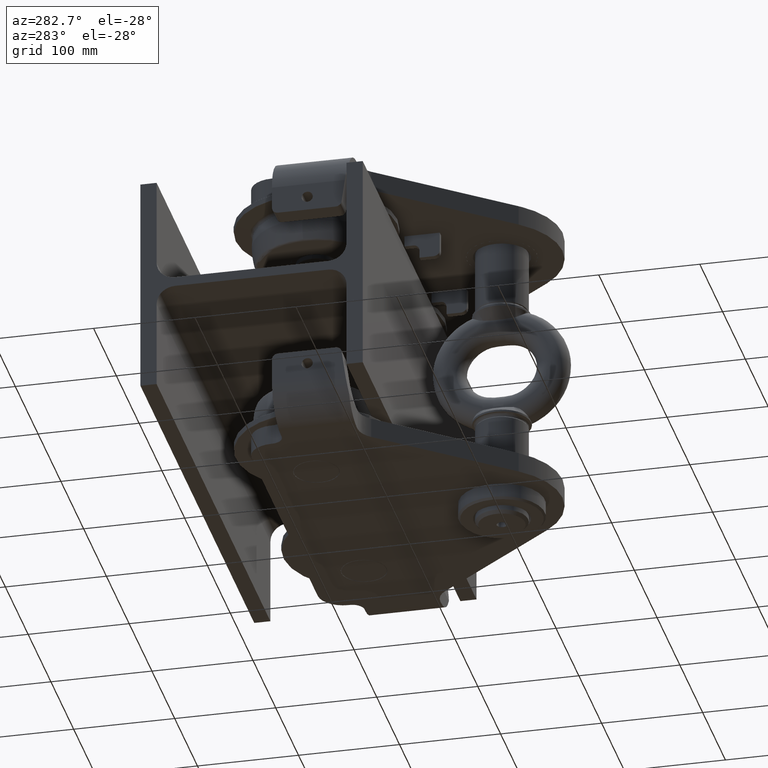
[diagram: clean part render]
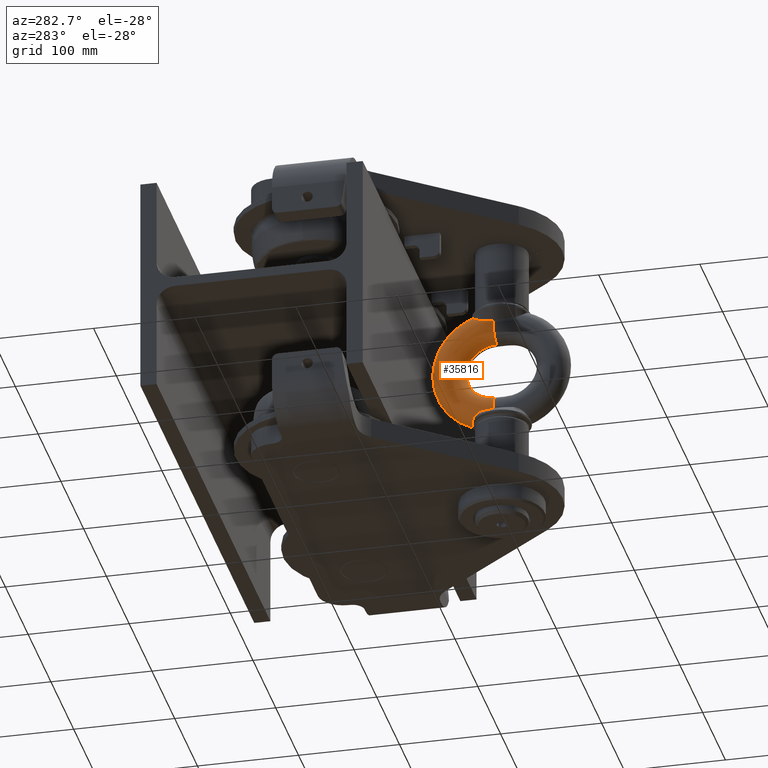
[diagram: same view with one face highlighted and labeled with its STEP entity id]
A machine part, auxiliary view. The second image highlights one B-rep face of the part: STEP entity #35816.
In plain terms, the highlighted toroidal blend (fillet) surface has major radius 46.5 mm and minor (blend) radius 16.5 mm.
Its self-contained STEP definition (entity closure, byte-faithful):
#60 = ORIENTED_EDGE ( 'NONE', *, *, #31855, .T. ) ;
#515 = EDGE_CURVE ( 'NONE', #19495, #3713, #19311, .T. ) ;
#541 = DIRECTION ( 'NONE',  ( -9.776541854337925000E-031, 1.000000000000000000, -1.414387360566590500E-014 ) ) ;
#743 = VERTEX_POINT ( 'NONE', #949 ) ;
#816 = CARTESIAN_POINT ( 'NONE',  ( -14.41843490699961400, -169.2002873099179400, 51.71288681910759500 ) ) ;
#949 = CARTESIAN_POINT ( 'NONE',  ( -3.446674414604755900E-015, -162.4999999999998000, 58.24946351684270200 ) ) ;
#1367 = CARTESIAN_POINT ( 'NONE',  ( -7.531583063169865300, -163.4798379345662900, 56.70910042947492300 ) ) ;
#1508 = CARTESIAN_POINT ( 'NONE',  ( -5.468188847259967800E-015, -186.5000000000000300, -2.774178518929992600E-016 ) ) ;
#1783 = VERTEX_POINT ( 'NONE', #26517 ) ;
#1902 = CARTESIAN_POINT ( 'NONE',  ( -15.76447316238294100, -173.3434420415851500, -49.66572867952409400 ) ) ;
#2081 = AXIS2_PLACEMENT_3D ( 'NONE', #9748, #6836, #3920 ) ;
#2160 = CARTESIAN_POINT ( 'NONE',  ( -13.29989869337451900, -167.4643535190509200, -52.95500724111472800 ) ) ;
#2316 = EDGE_CURVE ( 'NONE', #1783, #7033, #33848, .T. ) ;
#2329 = CARTESIAN_POINT ( 'NONE',  ( -16.14970968157152200, -176.4269376305332500, 48.85419018527897400 ) ) ;
#2666 = ORIENTED_EDGE ( 'NONE', *, *, #33411, .F. ) ;
#2725 = CARTESIAN_POINT ( 'NONE',  ( -4.262020387056222500E-015, -186.5000000000000300, 46.50000000000000000 ) ) ;
#2727 = CARTESIAN_POINT ( 'NONE',  ( -15.60961632101484400, -172.6033117119138200, 49.95687587011614300 ) ) ;
#2797 = DIRECTION ( 'NONE',  ( -1.000000000000000000, 0.0000000000000000000, 6.939431567305113600E-017 ) ) ;
#2870 = AXIS2_PLACEMENT_3D ( 'NONE', #20437, #2797, #12062 ) ;
#3630 = CARTESIAN_POINT ( 'NONE',  ( -16.42524475720239600, -184.8131510489849300, -48.06996765217579100 ) ) ;
#3673 = VERTEX_POINT ( 'NONE', #18281 ) ;
#3713 = VERTEX_POINT ( 'NONE', #20030 ) ;
#3920 = DIRECTION ( 'NONE',  ( -1.000000000000000000, 0.0000000000000000000, 0.0000000000000000000 ) ) ;
#3988 = CARTESIAN_POINT ( 'NONE',  ( -1.162611234089079300, -162.4999999999997200, -58.24946351684270200 ) ) ;
#4043 = AXIS2_PLACEMENT_3D ( 'NONE', #24868, #541, #6863 ) ;
#4217 = EDGE_CURVE ( 'NONE', #743, #26071, #31185, .T. ) ;
#4461 = CARTESIAN_POINT ( 'NONE',  ( -4.262020387056222500E-015, -186.5000000000000300, 46.50000000000000000 ) ) ;
#4512 = CARTESIAN_POINT ( 'NONE',  ( -11.04097899882418300, -165.3450377320452300, 54.82810784448297200 ) ) ;
#5304 = CARTESIAN_POINT ( 'NONE',  ( -15.52368704440445200, -172.2432221762338700, -50.11044335773218000 ) ) ;
#5482 = CARTESIAN_POINT ( 'NONE',  ( -16.14970968157152200, -176.4269376305332500, 48.85419018527897400 ) ) ;
#5814 = VERTEX_POINT ( 'NONE', #9284 ) ;
#6139 = CIRCLE ( 'NONE', #2870, 63.00000000000000000 ) ;
#6735 = ORIENTED_EDGE ( 'NONE', *, *, #13184, .T. ) ;
#6797 = CIRCLE ( 'NONE', #24768, 16.50000000000000400 ) ;
#6836 = DIRECTION ( 'NONE',  ( -9.776541854337925000E-031, 1.000000000000000000, -1.414387360566590500E-014 ) ) ;
#6863 = DIRECTION ( 'NONE',  ( -1.000000000000000000, 0.0000000000000000000, 0.0000000000000000000 ) ) ;
#7033 = VERTEX_POINT ( 'NONE', #36393 ) ;
#7040 = CARTESIAN_POINT ( 'NONE',  ( -4.599352381566343500, -162.8614865996226500, -57.70260742488734000 ) ) ;
#7282 = EDGE_CURVE ( 'NONE', #7033, #5814, #32864, .T. ) ;
#7293 = ORIENTED_EDGE ( 'NONE', *, *, #11344, .T. ) ;
#7407 = CARTESIAN_POINT ( 'NONE',  ( -9.542474760971408900, -164.3633559654267300, 55.74942739138322200 ) ) ;
#7732 = AXIS2_PLACEMENT_3D ( 'NONE', #15212, #11688, #20953 ) ;
#7835 = CARTESIAN_POINT ( 'NONE',  ( -16.14970968157152200, -176.4269376305332500, 48.85419018527897400 ) ) ;
#7972 = VERTEX_POINT ( 'NONE', #10485 ) ;
#8089 = CARTESIAN_POINT ( 'NONE',  ( -7.530738171591466700, -163.4796399932718300, -56.70943172050336800 ) ) ;
#8102 = CARTESIAN_POINT ( 'NONE',  ( -16.33325860116091700, -179.7695224717336900, 48.42271561141750900 ) ) ;
#8136 = CARTESIAN_POINT ( 'NONE',  ( -14.99815633690359500, -170.4862957488740300, 50.95146419734248900 ) ) ;
#8344 = CARTESIAN_POINT ( 'NONE',  ( -15.83172462128880300, -173.7159052453799900, -49.53129400317497000 ) ) ;
#8471 = CARTESIAN_POINT ( 'NONE',  ( -12.86108947759542600, -166.9328628973955200, 53.39142813885624200 ) ) ;
#8494 = CARTESIAN_POINT ( 'NONE',  ( -16.27217791761417200, -178.0942255209702400, 48.60082342732088300 ) ) ;
#9130 = B_SPLINE_CURVE_WITH_KNOTS ( 'NONE', 3,
 ( #5482, #20746, #32511, #23238, #14616, #2727, #26117, #35503, #8136, #38602, #816, #19265, #31514, #28595, #8471, #19307, #21904, #12479, #4512, #19643, #7407, #10344, #1367, #37285 ),
 .UNSPECIFIED., .F., .F.,
 ( 4, 2, 2, 2, 2, 2, 2, 2, 2, 2, 2, 4 ),
 ( 0.0000000000000000000, 0.002409449002536784700, 0.003614173503805172100, 0.004818898005073559000, 0.007228347007610332100, 0.008433071508878719000, 0.009637796010147104200, 0.01204724501268387800, 0.01325196951395226500, 0.01445669401522065200, 0.01686614301775737900, 0.01927559202029410100 ),
 .UNSPECIFIED. ) ;
#9167 = CARTESIAN_POINT ( 'NONE',  ( -16.33325860116092100, -179.7695224717339800, -48.42271561141747300 ) ) ;
#9250 = VERTEX_POINT ( 'NONE', #27306 ) ;
#9284 = CARTESIAN_POINT ( 'NONE',  ( -16.50000000000001100, -186.5000000000006800, -46.50000000000000000 ) ) ;
#9569 = CARTESIAN_POINT ( 'NONE',  ( -16.43063562197321700, -186.5000000000006800, -48.01136132607177100 ) ) ;
#9606 = FACE_OUTER_BOUND ( 'NONE', #17677, .T. ) ;
#9748 = CARTESIAN_POINT ( 'NONE',  ( -1.071569174464997900E-014, -186.5000000000006800, -46.50000000000000000 ) ) ;
#10344 = CARTESIAN_POINT ( 'NONE',  ( -8.226983262881347500, -163.7372643142427900, 56.40426757459554400 ) ) ;
#10485 = CARTESIAN_POINT ( 'NONE',  ( -6.789701822038450600, -163.3060299147529400, -57.00000000000000000 ) ) ;
#10586 = B_SPLINE_CURVE_WITH_KNOTS ( 'NONE', 3,
 ( #20396, #30775, #13806, #8102, #8494, #7835 ),
 .UNSPECIFIED., .F., .F.,
 ( 4, 2, 4 ),
 ( 0.0000000000000000000, 0.005056082113877077800, 0.01011216422775415600 ),
 .UNSPECIFIED. ) ;
#10603 = EDGE_CURVE ( 'NONE', #9250, #3673, #6797, .T. ) ;
#10724 = EDGE_CURVE ( 'NONE', #5814, #3713, #26486, .T. ) ;
#11027 = CARTESIAN_POINT ( 'NONE',  ( -6.789701822038450600, -163.3060299147529400, -57.00000000000000000 ) ) ;
#11163 = CARTESIAN_POINT ( 'NONE',  ( -11.88198488525195500, -165.9962263442315600, -54.22649970756167200 ) ) ;
#11344 = EDGE_CURVE ( 'NONE', #743, #32436, #6139, .T. ) ;
#11472 = ORIENTED_EDGE ( 'NONE', *, *, #32508, .T. ) ;
#11544 = CARTESIAN_POINT ( 'NONE',  ( -8.228052558565025300, -163.7374405120037900, -56.40392126491875000 ) ) ;
#11688 = DIRECTION ( 'NONE',  ( -1.000000000000000000, 0.0000000000000000000, 6.939431567305113600E-017 ) ) ;
#12062 = DIRECTION ( 'NONE',  ( 6.939431567305114900E-017, 0.0000000000000000000, 1.000000000000000000 ) ) ;
#12479 = CARTESIAN_POINT ( 'NONE',  ( -11.32339452381241600, -165.5587719001377100, 54.63134564718190900 ) ) ;
#13184 = EDGE_CURVE ( 'NONE', #32436, #7972, #32163, .T. ) ;
#13806 = CARTESIAN_POINT ( 'NONE',  ( -16.41022114154716100, -183.1289571422516600, 48.15709499626955600 ) ) ;
#14433 = CARTESIAN_POINT ( 'NONE',  ( -9.541050357054324100, -164.3817669063440400, -55.73941017199313600 ) ) ;
#14570 = CARTESIAN_POINT ( 'NONE',  ( -10.16649636255132400, -164.7498581920369800, -55.38407336389996500 ) ) ;
#14616 = CARTESIAN_POINT ( 'NONE',  ( -15.76393853991870100, -173.3405499587231900, 49.66678633498690200 ) ) ;
#15212 = CARTESIAN_POINT ( 'NONE',  ( -7.488856065853100900E-015, -186.5000000000000300, -2.774178518929991200E-016 ) ) ;
#15245 = CARTESIAN_POINT ( 'NONE',  ( -16.41022114154715800, -183.1289571422520100, -48.15709499626950000 ) ) ;
#16574 = CARTESIAN_POINT ( 'NONE',  ( -2.315721349617374100, -162.5696722219009000, 58.14676997551423900 ) ) ;
#16800 = CARTESIAN_POINT ( 'NONE',  ( -6.789701822038494200, -163.3060299147527100, 57.00000000000000000 ) ) ;
#16980 = CARTESIAN_POINT ( 'NONE',  ( -6.255083864232555700, -163.1772826503112400, 57.20820648636673400 ) ) ;
#17470 = CARTESIAN_POINT ( 'NONE',  ( -16.14970968157152600, -176.4269376305332700, -48.85419018527897400 ) ) ;
#17596 = CARTESIAN_POINT ( 'NONE',  ( -15.03840813540615400, -170.4573933811843500, -50.92307947960900800 ) ) ;
#17677 = EDGE_LOOP ( 'NONE', ( #19626, #7293, #6735, #11472, #18290, #25962, #25313, #35306, #2666, #34188, #60, #29384 ) ) ;
#18281 = CARTESIAN_POINT ( 'NONE',  ( -16.50000000000000400, -186.5000000000000300, 46.50000000000000000 ) ) ;
#18290 = ORIENTED_EDGE ( 'NONE', *, *, #2316, .T. ) ;
#18403 = AXIS2_PLACEMENT_3D ( 'NONE', #4461, #36312, #34359 ) ;
#19265 = CARTESIAN_POINT ( 'NONE',  ( -14.08090010373033600, -168.5892379345300800, 52.11621288737865100 ) ) ;
#19307 = CARTESIAN_POINT ( 'NONE',  ( -12.12155273087583200, -166.2259204597050400, 54.02184071569303800 ) ) ;
#19311 = CIRCLE ( 'NONE', #37752, 30.00000000000000000 ) ;
#19495 = VERTEX_POINT ( 'NONE', #29866 ) ;
#19626 = ORIENTED_EDGE ( 'NONE', *, *, #4217, .F. ) ;
#19643 = CARTESIAN_POINT ( 'NONE',  ( -10.16253130831400900, -164.7316451969872700, 55.39900076943216300 ) ) ;
#19703 = CARTESIAN_POINT ( 'NONE',  ( -4.030948684562137200, -162.7757409080449000, 57.83382278780621300 ) ) ;
#20030 = CARTESIAN_POINT ( 'NONE',  ( -5.468188847259969400E-015, -186.5000000000004800, -30.00000000000000000 ) ) ;
#20304 = CARTESIAN_POINT ( 'NONE',  ( -12.62039186310531300, -166.7031227623467100, -53.59638425016864700 ) ) ;
#20396 = CARTESIAN_POINT ( 'NONE',  ( -16.43063562197320600, -186.5000000000000300, 48.01136132607177800 ) ) ;
#20437 = CARTESIAN_POINT ( 'NONE',  ( -7.488856065853100900E-015, -186.5000000000000300, -2.774178518929991200E-016 ) ) ;
#20746 = CARTESIAN_POINT ( 'NONE',  ( -16.09073594290872900, -175.6258230020139600, 48.97655935730085700 ) ) ;
#20848 = TOROIDAL_SURFACE ( 'NONE', #7732, 46.50000000000000000, 16.50000000000000000 ) ;
#20953 = DIRECTION ( 'NONE',  ( -6.939431567305113600E-017, 0.0000000000000000000, -1.000000000000000000 ) ) ;
#20960 = DIRECTION ( 'NONE',  ( -1.000000000000000000, 0.0000000000000000000, 0.0000000000000000000 ) ) ;
#21904 = CARTESIAN_POINT ( 'NONE',  ( -11.86317710511134000, -165.9990989956879400, 54.22865603293592300 ) ) ;
#22263 = CARTESIAN_POINT ( 'NONE',  ( -6.789701822038450600, -163.3060299147529400, -57.00000000000000000 ) ) ;
#22294 = CARTESIAN_POINT ( 'NONE',  ( -1.153103773275323500E-014, -162.4999999999998000, -58.24946351684270200 ) ) ;
#22964 = CARTESIAN_POINT ( 'NONE',  ( -6.789701822038494200, -163.3060299147527100, 57.00000000000000000 ) ) ;
#23188 = CARTESIAN_POINT ( 'NONE',  ( -13.51089859848679900, -167.7361022266951500, -52.73977358315157500 ) ) ;
#23238 = CARTESIAN_POINT ( 'NONE',  ( -15.83134933537284900, -173.7136710239932100, 49.53205681885142300 ) ) ;
#23980 = CARTESIAN_POINT ( 'NONE',  ( -16.27217791761418300, -178.0942255209703000, -48.60082342732086100 ) ) ;
#24768 = AXIS2_PLACEMENT_3D ( 'NONE', #2725, #26838, #20960 ) ;
#24868 = CARTESIAN_POINT ( 'NONE',  ( -1.071569174464997900E-014, -186.5000000000006800, -46.50000000000000000 ) ) ;
#25016 = CARTESIAN_POINT ( 'NONE',  ( -4.030948684562138100, -162.7757409080449000, -57.83382278780621300 ) ) ;
#25150 = DIRECTION ( 'NONE',  ( 6.939431567305112400E-017, 0.0000000000000000000, 1.000000000000000000 ) ) ;
#25265 = CARTESIAN_POINT ( 'NONE',  ( -2.315721349617378100, -162.5696722219009000, -58.14676997551423900 ) ) ;
#25313 = ORIENTED_EDGE ( 'NONE', *, *, #10724, .T. ) ;
#25718 = CARTESIAN_POINT ( 'NONE',  ( -5.710080908971724200, -163.0621121015218500, 57.39001116515273500 ) ) ;
#25743 = CIRCLE ( 'NONE', #18403, 16.50000000000000400 ) ;
#25768 = B_SPLINE_CURVE_WITH_KNOTS ( 'NONE', 3,
 ( #11027, #8089, #11544, #32447, #14433, #14570, #29066, #26320, #11163, #20304, #32068, #2160, #23188, #26198, #17596, #5304, #38474, #1902, #8344, #29308, #35323, #17470 ),
 .UNSPECIFIED., .F., .F.,
 ( 4, 2, 2, 2, 2, 2, 2, 2, 2, 2, 4 ),
 ( 4.127849144711674500E-016, 0.002407351298758848200, 0.003611026948138083900, 0.004814702597517320000, 0.007222053896275781900, 0.008425729545655036600, 0.009629405195034289700, 0.01444410779255121700, 0.01564778344193044900, 0.01685145909130967800, 0.01925881039006813200 ),
 .UNSPECIFIED. ) ;
#25962 = ORIENTED_EDGE ( 'NONE', *, *, #7282, .T. ) ;
#26071 = VERTEX_POINT ( 'NONE', #16800 ) ;
#26117 = CARTESIAN_POINT ( 'NONE',  ( -15.52239812837037600, -172.2381068762570900, 50.11268272700814200 ) ) ;
#26198 = CARTESIAN_POINT ( 'NONE',  ( -14.49674230936695300, -169.1583207088277700, -51.68017325012591100 ) ) ;
#26320 = CARTESIAN_POINT ( 'NONE',  ( -11.34520208129463700, -165.5585483348292300, -54.62953950804698200 ) ) ;
#26486 = CIRCLE ( 'NONE', #2081, 16.50000000000000400 ) ;
#26517 = CARTESIAN_POINT ( 'NONE',  ( -16.14970968157152600, -176.4269376305332700, -48.85419018527897400 ) ) ;
#26838 = DIRECTION ( 'NONE',  ( 0.0000000000000000000, -1.000000000000000000, 5.548357037863925900E-017 ) ) ;
#27306 = CARTESIAN_POINT ( 'NONE',  ( -16.43063562197320600, -186.5000000000000300, 48.01136132607177800 ) ) ;
#27748 = CARTESIAN_POINT ( 'NONE',  ( -6.255083864232553900, -163.1772826503112700, -57.20820648636673400 ) ) ;
#28595 = CARTESIAN_POINT ( 'NONE',  ( -13.30570346881183700, -167.4419289165998400, 52.95966035064358800 ) ) ;
#28955 = CARTESIAN_POINT ( 'NONE',  ( -4.599352381566340900, -162.8614865996226500, 57.70260742488734000 ) ) ;
#29066 = CARTESIAN_POINT ( 'NONE',  ( -10.47097514470773100, -164.9465008450962700, -55.19895987007903700 ) ) ;
#29237 = EDGE_CURVE ( 'NONE', #37790, #26071, #9130, .T. ) ;
#29308 = CARTESIAN_POINT ( 'NONE',  ( -16.00779564519314800, -174.8489914343376200, -49.16660984428277500 ) ) ;
#29384 = ORIENTED_EDGE ( 'NONE', *, *, #29237, .T. ) ;
#29866 = CARTESIAN_POINT ( 'NONE',  ( -5.468188847259967800E-015, -186.5000000000000300, 30.00000000000000000 ) ) ;
#30775 = CARTESIAN_POINT ( 'NONE',  ( -16.42524475720238500, -184.8131510489843900, 48.06996765217581900 ) ) ;
#31185 = B_SPLINE_CURVE_WITH_KNOTS ( 'NONE', 3,
 ( #31846, #34846, #16574, #19703, #28955, #25718, #16980, #22964 ),
 .UNSPECIFIED., .F., .F.,
 ( 4, 2, 2, 4 ),
 ( 0.006967397322768796200, 0.01044571445054512200, 0.01218487301443328500, 0.01392403157832144800 ),
 .UNSPECIFIED. ) ;
#31514 = CARTESIAN_POINT ( 'NONE',  ( -13.89661665512418100, -168.2916594602536400, 52.32551736131588200 ) ) ;
#31846 = CARTESIAN_POINT ( 'NONE',  ( -3.446674414604755900E-015, -162.4999999999998000, 58.24946351684270200 ) ) ;
#31855 = EDGE_CURVE ( 'NONE', #9250, #37790, #10586, .T. ) ;
#32068 = CARTESIAN_POINT ( 'NONE',  ( -12.85498062700794200, -166.9483744100648700, -53.38296045857460100 ) ) ;
#32163 = B_SPLINE_CURVE_WITH_KNOTS ( 'NONE', 3,
 ( #33766, #3988, #25265, #25016, #7040, #33884, #27748, #22263 ),
 .UNSPECIFIED., .F., .F.,
 ( 4, 2, 2, 4 ),
 ( 0.006967397322768791000, 0.01044571445054511000, 0.01218487301443326900, 0.01392403157832142900 ),
 .UNSPECIFIED. ) ;
#32436 = VERTEX_POINT ( 'NONE', #22294 ) ;
#32447 = CARTESIAN_POINT ( 'NONE',  ( -9.219653869748247700, -164.2098814411540100, -55.91003089512702200 ) ) ;
#32508 = EDGE_CURVE ( 'NONE', #7972, #1783, #25768, .T. ) ;
#32511 = CARTESIAN_POINT ( 'NONE',  ( -16.00775697945096700, -174.8483820348196200, 49.16671881102188700 ) ) ;
#32629 = CARTESIAN_POINT ( 'NONE',  ( -16.14970968157152600, -176.4269376305332700, -48.85419018527897400 ) ) ;
#32864 = CIRCLE ( 'NONE', #4043, 16.50000000000000400 ) ;
#33411 = EDGE_CURVE ( 'NONE', #3673, #19495, #25743, .T. ) ;
#33766 = CARTESIAN_POINT ( 'NONE',  ( -1.153103773275323500E-014, -162.4999999999998000, -58.24946351684270200 ) ) ;
#33848 = B_SPLINE_CURVE_WITH_KNOTS ( 'NONE', 3,
 ( #32629, #23980, #9167, #15245, #3630, #9569 ),
 .UNSPECIFIED., .F., .F.,
 ( 4, 2, 4 ),
 ( 0.0000000000000000000, 0.005056082113877397900, 0.01011216422775479600 ),
 .UNSPECIFIED. ) ;
#33884 = CARTESIAN_POINT ( 'NONE',  ( -5.710080908971724200, -163.0621121015218800, -57.39001116515273500 ) ) ;
#33902 = DIRECTION ( 'NONE',  ( -1.000000000000000000, 0.0000000000000000000, 6.939431567305113600E-017 ) ) ;
#34188 = ORIENTED_EDGE ( 'NONE', *, *, #10603, .F. ) ;
#34359 = DIRECTION ( 'NONE',  ( -1.000000000000000000, 0.0000000000000000000, 0.0000000000000000000 ) ) ;
#34846 = CARTESIAN_POINT ( 'NONE',  ( -1.162611234089073700, -162.4999999999997200, 58.24946351684270200 ) ) ;
#35306 = ORIENTED_EDGE ( 'NONE', *, *, #515, .F. ) ;
#35323 = CARTESIAN_POINT ( 'NONE',  ( -16.09073587124078500, -175.6258220284580300, -48.97655950601014000 ) ) ;
#35503 = CARTESIAN_POINT ( 'NONE',  ( -15.23141514536762900, -171.1684114122036500, 50.59971117742737300 ) ) ;
#35816 = ADVANCED_FACE ( 'NONE', ( #9606 ), #20848, .T. ) ;
#36312 = DIRECTION ( 'NONE',  ( 0.0000000000000000000, -1.000000000000000000, 5.548357037863925900E-017 ) ) ;
#36393 = CARTESIAN_POINT ( 'NONE',  ( -16.43063562197321700, -186.5000000000006800, -48.01136132607177100 ) ) ;
#37285 = CARTESIAN_POINT ( 'NONE',  ( -6.789701822038494200, -163.3060299147527100, 57.00000000000000000 ) ) ;
#37752 = AXIS2_PLACEMENT_3D ( 'NONE', #1508, #33902, #25150 ) ;
#37790 = VERTEX_POINT ( 'NONE', #2329 ) ;
#38474 = CARTESIAN_POINT ( 'NONE',  ( -15.61060803828165800, -172.6077146952236500, -49.95506384522729300 ) ) ;
#38602 = CARTESIAN_POINT ( 'NONE',  ( -14.57284169700166400, -169.5152199017270500, 51.51764444182906300 ) ) ;